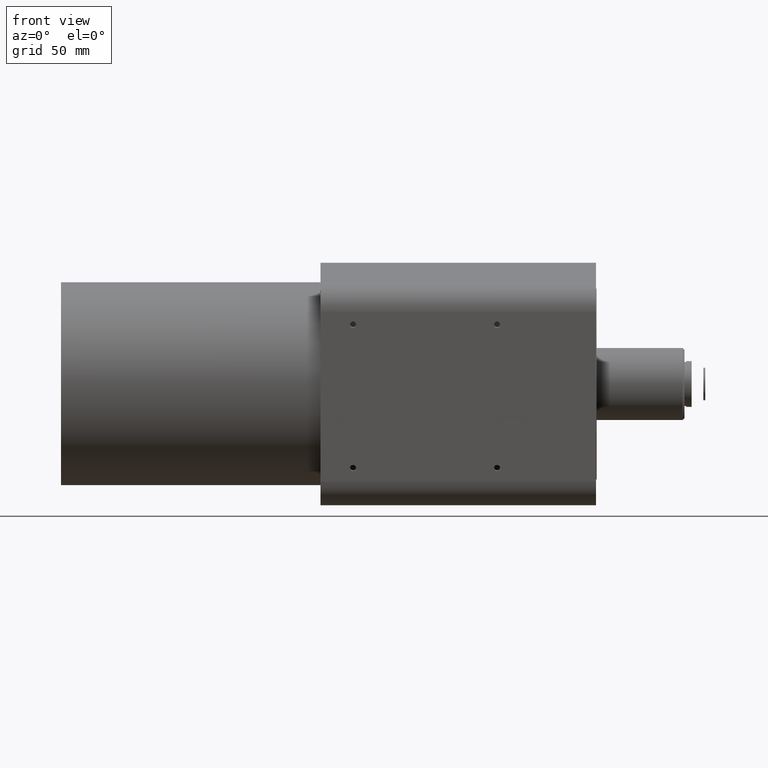
[diagram: clean part render]
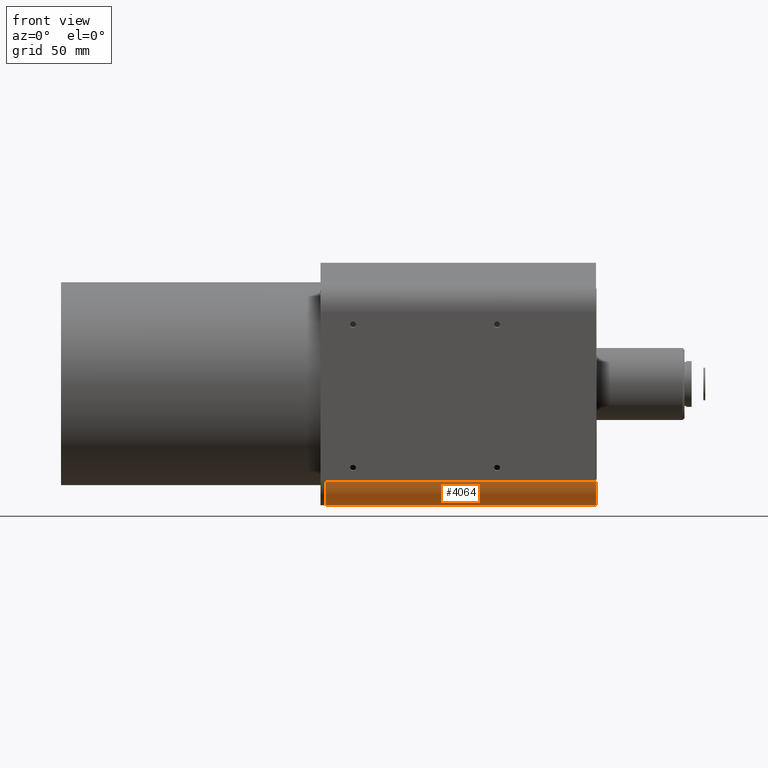
[diagram: same view with one face highlighted and labeled with its STEP entity id]
A machine part, front view. The second image highlights one B-rep face of the part: STEP entity #4064.
In plain terms, the highlighted cylindrical surface (edge-blend (fillet) strip) has radius 15 mm, axis along (1, 0, 0).
Its self-contained STEP definition (entity closure, byte-faithful):
#229 = FACE_OUTER_BOUND ( 'NONE', #2917, .T. ) ;
#999 = CARTESIAN_POINT ( 'NONE',  ( 6.465102322793470080, -42.00601421560021009, -52.42131980138230318 ) ) ;
#1225 = VERTEX_POINT ( 'NONE', #14814 ) ;
#1302 = CARTESIAN_POINT ( 'NONE',  ( -143.5348976772065441, -40.36149228100303077, -67.33089885669534169 ) ) ;
#2061 = VECTOR ( 'NONE', #20167, 1000.000000000000000 ) ;
#2917 = EDGE_LOOP ( 'NONE', ( #45315, #11778, #47255, #27684 ) ) ;
#4064 = ADVANCED_FACE ( 'NONE', ( #229 ), #37644, .T. ) ;
#5432 = EDGE_CURVE ( 'NONE', #29413, #1225, #18863, .T. ) ;
#6351 = DIRECTION ( 'NONE',  ( -1.000000000000000000, -3.741578115183051394E-17, -3.335034143899465079E-17 ) ) ;
#6511 = AXIS2_PLACEMENT_3D ( 'NONE', #999, #19606, #30444 ) ;
#11778 = ORIENTED_EDGE ( 'NONE', *, *, #23016, .T. ) ;
#14814 = CARTESIAN_POINT ( 'NONE',  ( -143.5348976772065441, -56.91559327091324150, -54.06584173597949672 ) ) ;
#17129 = CARTESIAN_POINT ( 'NONE',  ( -143.5348976772065441, -40.36149228100303077, -67.33089885669532748 ) ) ;
#18147 = AXIS2_PLACEMENT_3D ( 'NONE', #26302, #22210, #37145 ) ;
#18310 = VERTEX_POINT ( 'NONE', #27858 ) ;
#18863 = CIRCLE ( 'NONE', #21186, 14.99999999999999467 ) ;
#19453 = LINE ( 'NONE', #33922, #2061 ) ;
#19606 = DIRECTION ( 'NONE',  ( -1.000000000000000000, -3.741578115183051394E-17, -3.335034143899465079E-17 ) ) ;
#19926 = CARTESIAN_POINT ( 'NONE',  ( 6.465102322793470968, -56.91559327091323439, -54.06584173597948961 ) ) ;
#20167 = DIRECTION ( 'NONE',  ( -1.000000000000000000, -3.741578115183051394E-17, -3.335034143899465079E-17 ) ) ;
#21092 = DIRECTION ( 'NONE',  ( 0.000000000000000000, 0.1096347956398125295, -0.9939719370208681681 ) ) ;
#21186 = AXIS2_PLACEMENT_3D ( 'NONE', #39427, #6351, #21092 ) ;
#22210 = DIRECTION ( 'NONE',  ( 1.000000000000000000, 3.741578115183051394E-17, 3.335034143899465079E-17 ) ) ;
#23016 = EDGE_CURVE ( 'NONE', #32880, #1225, #19453, .T. ) ;
#23313 = EDGE_CURVE ( 'NONE', #29413, #18310, #26383, .T. ) ;
#24133 = DIRECTION ( 'NONE',  ( 1.000000000000000000, 3.741578115183051394E-17, 3.335034143899465079E-17 ) ) ;
#26302 = CARTESIAN_POINT ( 'NONE',  ( -143.5348976772065441, -42.00601421560021720, -52.42131980138231029 ) ) ;
#26383 = LINE ( 'NONE', #17129, #28188 ) ;
#27684 = ORIENTED_EDGE ( 'NONE', *, *, #23313, .T. ) ;
#27858 = CARTESIAN_POINT ( 'NONE',  ( 6.465102322793470080, -40.36149228100302366, -67.33089885669534169 ) ) ;
#28188 = VECTOR ( 'NONE', #24133, 1000.000000000000000 ) ;
#29413 = VERTEX_POINT ( 'NONE', #1302 ) ;
#30444 = DIRECTION ( 'NONE',  ( 5.782411586589356160E-17, 0.1096347956398124601, -0.9939719370208680571 ) ) ;
#32880 = VERTEX_POINT ( 'NONE', #19926 ) ;
#33922 = CARTESIAN_POINT ( 'NONE',  ( -143.5348976772065441, -56.91559327091324150, -54.06584173597949672 ) ) ;
#37145 = DIRECTION ( 'NONE',  ( 0.000000000000000000, 0.1096347956398125295, -0.9939719370208681681 ) ) ;
#37644 = CYLINDRICAL_SURFACE ( 'NONE', #18147, 14.99999999999999467 ) ;
#39427 = CARTESIAN_POINT ( 'NONE',  ( -143.5348976772065441, -42.00601421560021720, -52.42131980138231029 ) ) ;
#39663 = CIRCLE ( 'NONE', #6511, 15.00000000000000355 ) ;
#41324 = EDGE_CURVE ( 'NONE', #18310, #32880, #39663, .T. ) ;
#45315 = ORIENTED_EDGE ( 'NONE', *, *, #41324, .T. ) ;
#47255 = ORIENTED_EDGE ( 'NONE', *, *, #5432, .F. ) ;